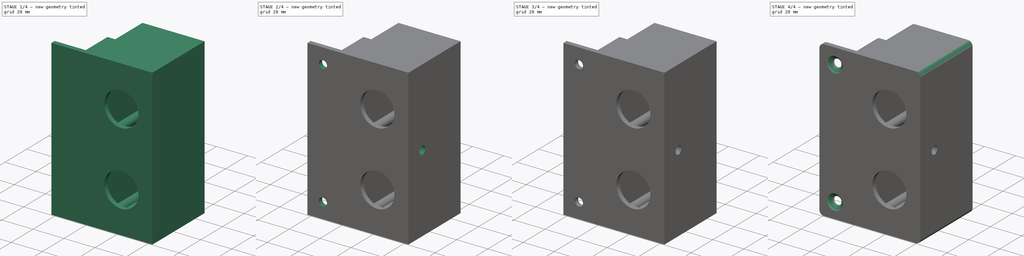
[diagram: build sequence overview — one tinted view per stage of 4, left to right]
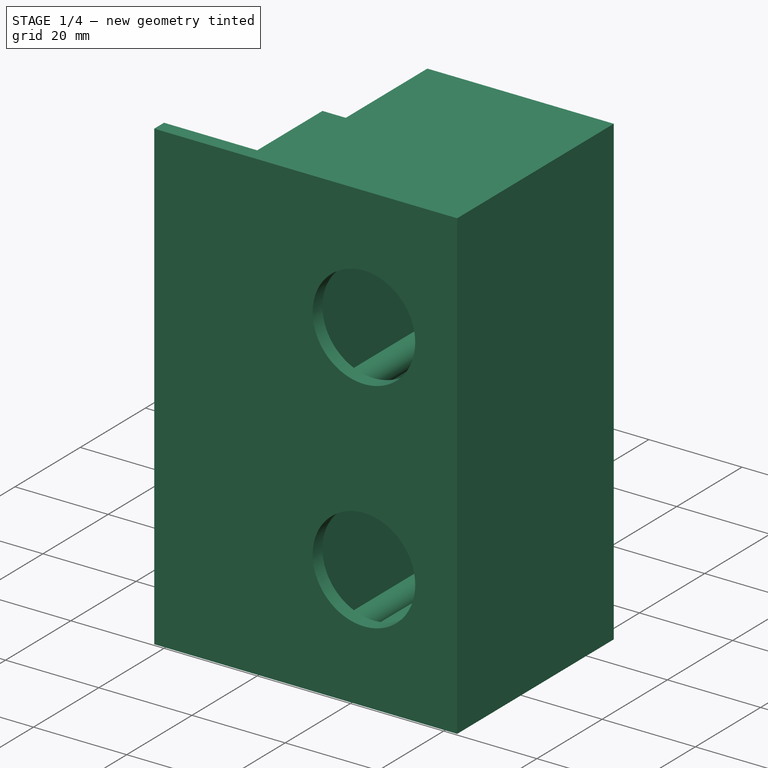
[diagram: stage 1 of 4 — iso view after this stage's code; geometry added in this stage tinted green]
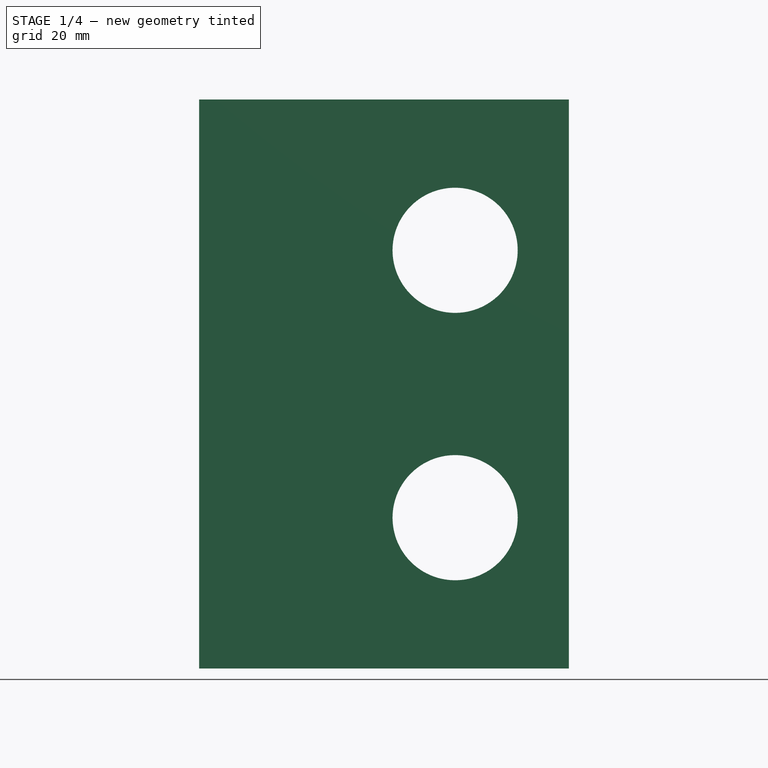
[diagram: stage 1 of 4 — front view after this stage's code; geometry added in this stage tinted green]
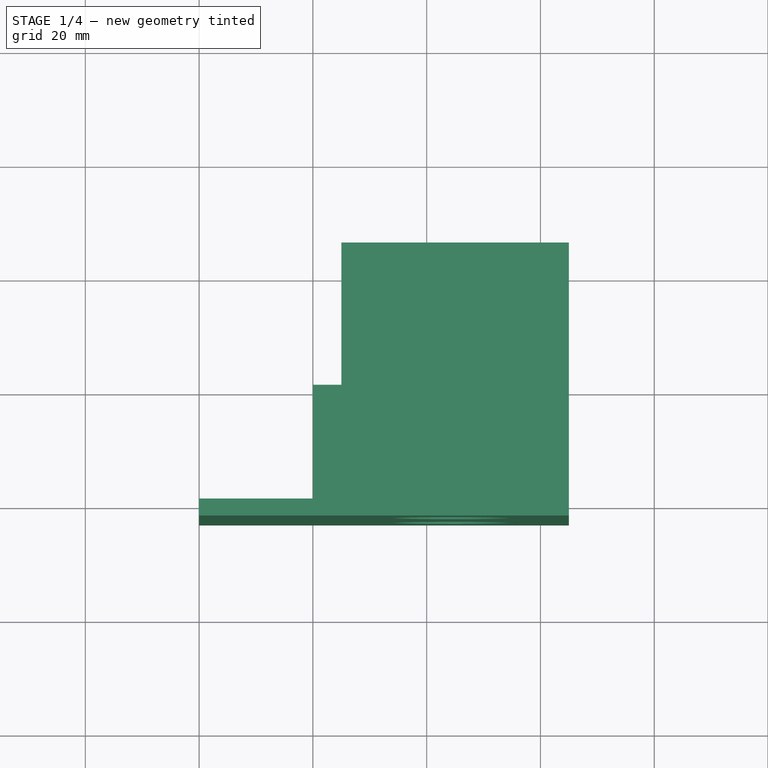
[diagram: stage 1 of 4 — top view after this stage's code; geometry added in this stage tinted green]
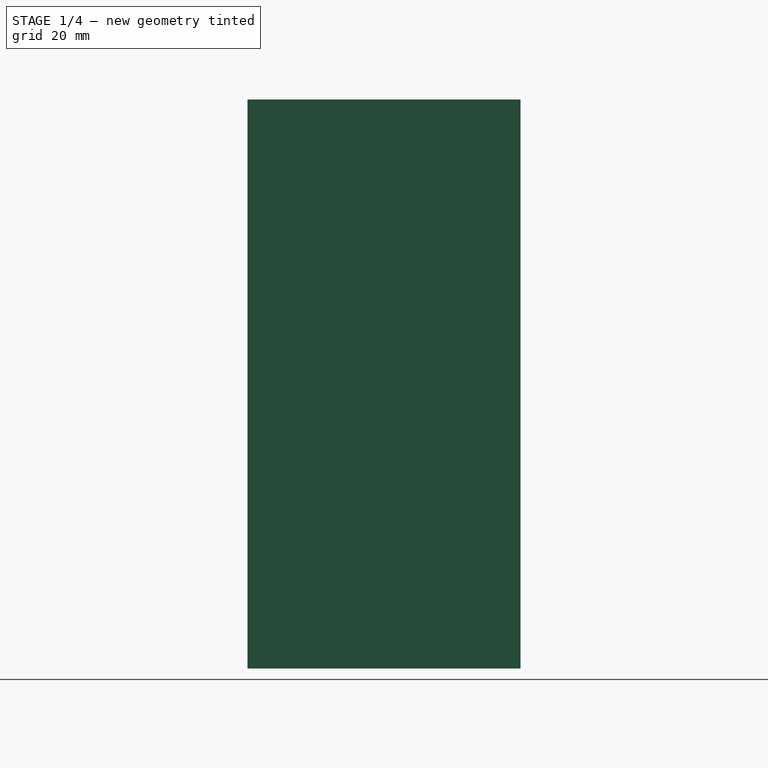
[diagram: stage 1 of 4 — right view after this stage's code; geometry added in this stage tinted green]
FCSTD DOCUMENT  (FreeCAD 0.19R24276 (Git))
Label: 2020_2x22mm_left
License: All rights reserved
LicenseURL: http://en.wikipedia.org/wiki/All_rights_reserved
objects: Sketcher::SketchObject×8, PartDesign::Pocket×7, PartDesign::Chamfer×2, PartDesign::Pad×1, PartDesign::Fillet×1, PartDesign::Body×1
note: 31 computed .brp shape members not serialized (recipe doc carries the construction recipe); baked Part::Feature solids carry a one-line shape summary decoded from their .brp

FEATURE [Sketcher::SketchObject] Sketch
  FullyConstrained = true
  MapMode = 5
  Support = -> [XY_Plane]
  sketch-geometry (13):
    g0: LineSegment StartX=-20 StartY=-3 StartZ=0 EndX=-20 EndY=0 EndZ=0
    g1: LineSegment StartX=-20 StartY=0 StartZ=0 EndX=0 EndY=0 EndZ=0
    g2: LineSegment StartX=0 StartY=0 StartZ=0 EndX=0 EndY=20 EndZ=0
    g3: LineSegment StartX=0 StartY=20 StartZ=0 EndX=5 EndY=20 EndZ=0
    g4: LineSegment StartX=5 StartY=20 StartZ=0 EndX=5 EndY=45 EndZ=0
    g5: LineSegment StartX=45 StartY=45 StartZ=0 EndX=45 EndY=-3 EndZ=0
    g6: LineSegment StartX=45 StartY=-3 StartZ=0 EndX=-20 EndY=-3 EndZ=0
    g7: LineSegment StartX=45 StartY=45 StartZ=0 EndX=41 EndY=45 EndZ=0
    g8: LineSegment StartX=41 StartY=45 StartZ=0 EndX=41 EndY=0 EndZ=0
    g9: LineSegment StartX=41 StartY=0 StartZ=0 EndX=9 EndY=0 EndZ=0
    g10: LineSegment StartX=9 StartY=0 StartZ=0 EndX=9 EndY=45 EndZ=0
    g11: LineSegment StartX=9 StartY=45 StartZ=0 EndX=5 EndY=45 EndZ=0
    g12: LineSegment StartX=5 StartY=45 StartZ=0 EndX=45 EndY=45 EndZ=0
  constraints (37):
    c: PointOnObject(g0,g-1)
    c: Vertical(g0)
    c: Coincident(g0,g1)
    c: Coincident(g1,g-1)
    c: Coincident(g1,g2)
    c: PointOnObject(g2,g-2)
    c: Coincident(g2,g3)
    c: Horizontal(g3)
    c: Coincident(g3,g4)
    c: Vertical(g4)
    c: Vertical(g5)
    c: Coincident(g5,g6)
    c: Coincident(g6,g0)
    c: Horizontal(g6)
    c: Equal(g1,g2)
    c: DistanceX(g1,g1) = 20
    c: DistanceX(g3,g3) = 5
    c: DistanceY(g0,g0) = 3
    c: Coincident(g5,g7)
    c: Horizontal(g7)
    c: Coincident(g7,g8)
    c: PointOnObject(g8,g-1)
    c: Vertical(g8)
    c: Coincident(g8,g9)
    c: PointOnObject(g9,g-1)
    c: Coincident(g9,g10)
    c: Vertical(g10)
    c: Coincident(g11,g10)
    c: Coincident(g11,g4)
    c: Horizontal(g11)
    c: Equal(g10,g8)
    c: Equal(g7,g11)
    c: DistanceX(g9,g9) = 32
    c: DistanceX(g11,g11) = 4
    c: DistanceY(g8,g8) = 45
    c: Coincident(g12,g4)
    c: Coincident(g12,g5)
FEATURE [PartDesign::Pad] Pad
  Direction = (1,1,1)
  Length = 100
  Length2 = 100
  Midplane = true
  Profile = -> Sketch
  Type = 0
FEATURE [Sketcher::SketchObject] Sketch001
  FullyConstrained = true
  MapMode = 5
  Placement = pos=(0,45,0) rot=(0,0.707107,0.707107;3.14159rad)
  Support = -> [Pad]
  sketch-geometry (25):
    g0: ArcOfCircle CenterX=-42 CenterY=0 CenterZ=0 NormalX=0 NormalY=0 NormalZ=1 AngleXU=0 Radius=3 StartAngle=4.71239 EndAngle=7.85398
    g1: ArcOfCircle CenterX=-8 CenterY=0 CenterZ=0 NormalX=0 NormalY=0 NormalZ=1 AngleXU=0 Radius=3 StartAngle=1.5708 EndAngle=4.71239
    g2: LineSegment StartX=-42 StartY=3 StartZ=0 EndX=-42 EndY=44 EndZ=0
    g3: LineSegment StartX=-39 StartY=47 StartZ=0 EndX=-11 EndY=47 EndZ=0
    g4: LineSegment StartX=-8 StartY=44 StartZ=0 EndX=-8 EndY=3 EndZ=0
    g5: LineSegment StartX=-8 StartY=3 StartZ=0 EndX=-8 EndY=-3 EndZ=0
    g6: LineSegment StartX=-8 StartY=-3 StartZ=0 EndX=-8 EndY=-44 EndZ=0
    g7: LineSegment StartX=-11 StartY=-47 StartZ=0 EndX=-39 EndY=-47 EndZ=0
    g8: LineSegment StartX=-42 StartY=-44 StartZ=0 EndX=-42 EndY=-3 EndZ=0
    g9: LineSegment StartX=-42 StartY=-3 StartZ=0 EndX=-42 EndY=3 EndZ=0
    g10: LineSegment StartX=-42 StartY=44 StartZ=0 EndX=-42 EndY=47 EndZ=0
    g11: LineSegment StartX=-39 StartY=47 StartZ=0 EndX=-42 EndY=47 EndZ=0
    g12: LineSegment StartX=-11 StartY=47 StartZ=0 EndX=-8 EndY=47 EndZ=0
    g13: LineSegment StartX=-8 StartY=47 StartZ=0 EndX=-8 EndY=44 EndZ=0
    g14: LineSegment StartX=-11 StartY=-47 StartZ=0 EndX=-8 EndY=-47 EndZ=0
    g15: LineSegment StartX=-8 StartY=-44 StartZ=0 EndX=-8 EndY=-47 EndZ=0
    g16: LineSegment StartX=-42 StartY=-44 StartZ=0 EndX=-42 EndY=-47 EndZ=0
    g17: LineSegment StartX=-42 StartY=-47 StartZ=0 EndX=-39 EndY=-47 EndZ=0
    g18: ArcOfCircle CenterX=-42 CenterY=-47 CenterZ=0 NormalX=0 NormalY=0 NormalZ=1 AngleXU=0 Radius=3 StartAngle=0 EndAngle=1.5708
    g19: ArcOfCircle CenterX=-8 CenterY=-47 CenterZ=0 NormalX=0 NormalY=0 NormalZ=1 AngleXU=0 Radius=3 StartAngle=1.5708 EndAngle=3.14159
    g20: ArcOfCircle CenterX=-42 CenterY=47 CenterZ=0 NormalX=0 NormalY=0 NormalZ=1 AngleXU=0 Radius=3 StartAngle=4.71239 EndAngle=6.28319
    g21: ArcOfCircle CenterX=-8 CenterY=47 CenterZ=0 NormalX=0 NormalY=0 NormalZ=1 AngleXU=0 Radius=3 StartAngle=3.14159 EndAngle=4.71239
    g22: LineSegment StartX=-42 StartY=47 StartZ=0 EndX=-25 EndY=0 EndZ=0
    g23: LineSegment StartX=-25 StartY=0 StartZ=0 EndX=-8 EndY=47 EndZ=0
    g24: LineSegment StartX=-25 StartY=0 StartZ=0 EndX=-42 EndY=-47 EndZ=0
  constraints (69):
    c: PointOnObject(g0,g-1)
    c: PointOnObject(g1,g-1)
    c: Coincident(g2,g0)
    c: Vertical(g2)
    c: Horizontal(g3)
    c: Vertical(g4)
    c: Coincident(g5,g4)
    c: Vertical(g5)
    c: Coincident(g6,g5)
    c: Vertical(g6)
    c: Horizontal(g7)
    c: Coincident(g8,g0)
    c: Coincident(g9,g0)
    c: Coincident(g9,g0)
    c: Vertical(g9)
    c: PointOnObject(g0,g9)
    c: Coincident(g1,g4)
    c: Coincident(g1,g5)
    c: PointOnObject(g1,g5)
    c: Coincident(g10,g2)
    c: Coincident(g11,g3)
    c: Coincident(g11,g10)
    c: Horizontal(g11)
    c: Vertical(g10)
    c: Coincident(g12,g3)
    c: Coincident(g13,g12)
    c: Coincident(g13,g4)
    c: Vertical(g13)
    c: Horizontal(g12)
    c: Coincident(g14,g7)
    c: Horizontal(g14)
    c: Coincident(g15,g6)
    c: Coincident(g15,g14)
    c: Vertical(g15)
    c: Coincident(g16,g8)
    c: Coincident(g17,g16)
    c: Coincident(g17,g7)
    c: Horizontal(g17)
    c: Vertical(g16)
    c: Vertical(g8)
    c: Coincident(g18,g16)
    c: Coincident(g18,g8)
    c: Coincident(g18,g7)
    c: Coincident(g19,g14)
    c: Coincident(g19,g7)
    c: Coincident(g19,g6)
    c: Coincident(g20,g10)
    c: Coincident(g20,g2)
    c: Coincident(g20,g3)
    c: Coincident(g21,g12)
    c: Coincident(g21,g4)
    c: Coincident(g21,g3)
    c: Equal(g18,g19)
    c: Equal(g19,g1)
    c: Equal(g1,g0)
    c: Equal(g0,g21)
    c: Equal(g21,g20)
    c: DistanceX(g20,g21) = 34
    c: DistanceY(g18,g20) = 94
    c: Coincident(g22,g20)
    c: PointOnObject(g22,g-1)
    c: Coincident(g22,g23)
    c: Coincident(g23,g21)
    c: Coincident(g22,g24)
    c: Coincident(g24,g18)
    c: Equal(g24,g22)
    c: Equal(g22,g23)
    c: DistanceX(g22,g-1) = 25
    c: Radius(g18) = 3
FEATURE [PartDesign::Pocket] Pocket
  BaseFeature = -> Pad
  Length = 45
  Length2 = 100
  Profile = -> Sketch001
  Type = 0
FEATURE [Sketcher::SketchObject] Sketch002
  FullyConstrained = true
  MapMode = 5
  Placement = pos=(0,1.4e-14,0) rot=(0,0.707107,0.707107;3.14159rad)
  sketch-geometry (4):
    g0: LineSegment StartX=-25 StartY=23.5 StartZ=0 EndX=-25 EndY=0 EndZ=0
    g1: LineSegment StartX=-25 StartY=0 StartZ=0 EndX=-25 EndY=-23.5 EndZ=0
    g2: Circle CenterX=-25 CenterY=23.5 CenterZ=0 NormalX=0 NormalY=0 NormalZ=1 AngleXU=0 Radius=11
    g3: Circle CenterX=-25 CenterY=-23.5 CenterZ=0 NormalX=0 NormalY=0 NormalZ=1 AngleXU=0 Radius=11
  constraints (11):
    c: PointOnObject(g0,g-1)
    c: Vertical(g0)
    c: Coincident(g1,g0)
    c: Vertical(g1)
    c: Equal(g0,g1)
    c: Coincident(g2,g0)
    c: Coincident(g3,g1)
    c: Diameter(g3) = 22
    c: Equal(g3,g2)
    c: DistanceX(g0,g-1) = 25
    c: DistanceY(g0,g0) = 23.5
FEATURE [PartDesign::Pocket] Pocket001
  BaseFeature = -> Pocket
  Length = 5
  Length2 = 100
  Profile = -> Sketch002
  Type = 0
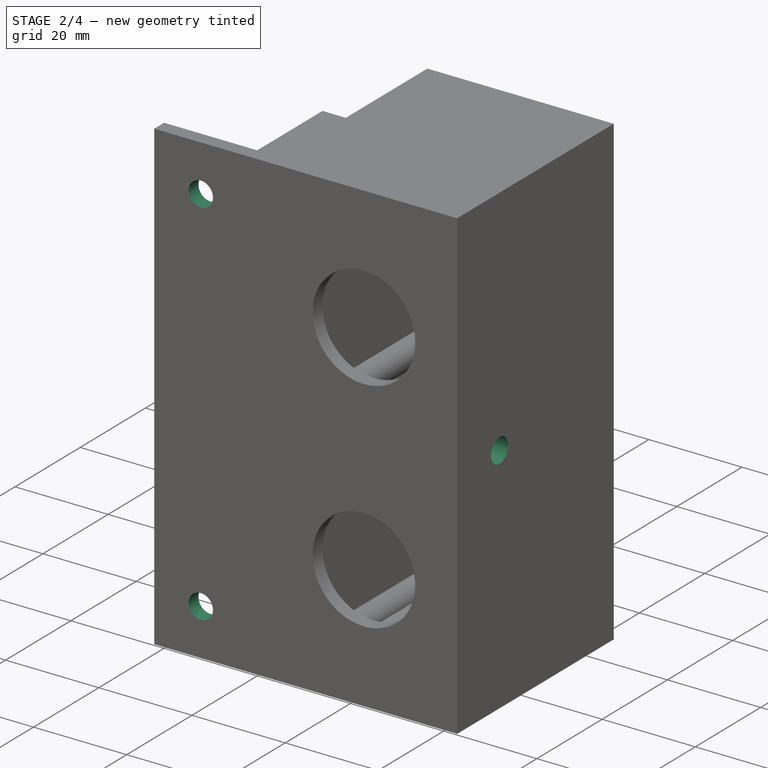
[diagram: stage 2 of 4 — iso view after this stage's code; geometry added in this stage tinted green]
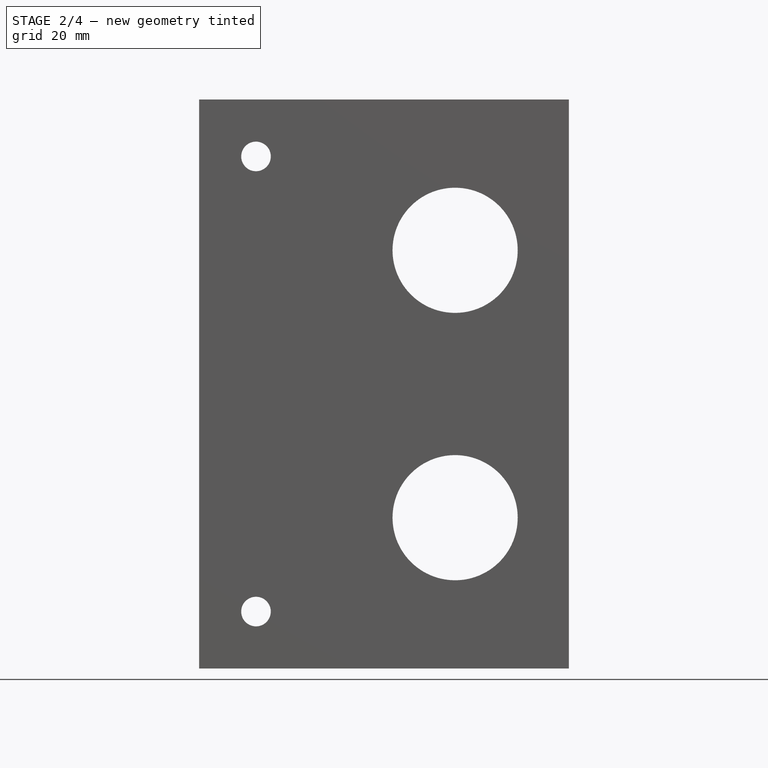
[diagram: stage 2 of 4 — front view after this stage's code; geometry added in this stage tinted green]
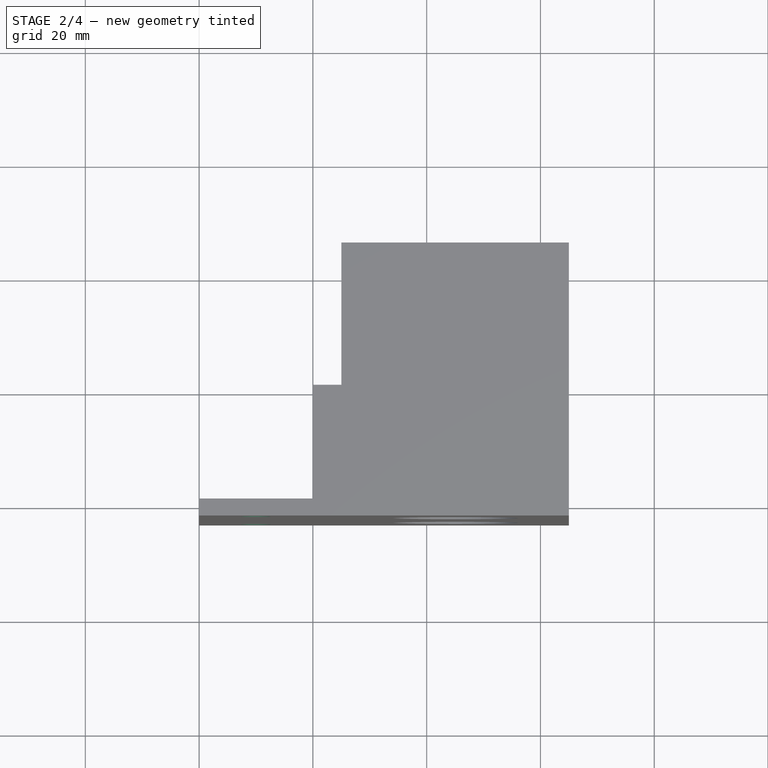
[diagram: stage 2 of 4 — top view after this stage's code; geometry added in this stage tinted green]
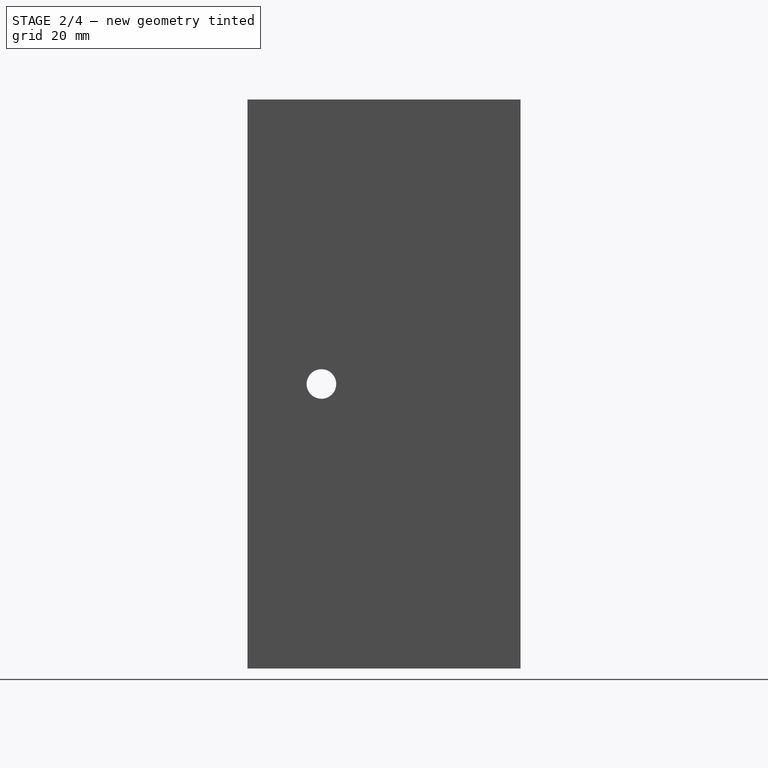
[diagram: stage 2 of 4 — right view after this stage's code; geometry added in this stage tinted green]
FEATURE [Sketcher::SketchObject] Sketch003
  ExternalGeometry = -> [Pocket001]
  FullyConstrained = true
  MapMode = 5
  Placement = pos=(0,45,0) rot=(0,0.707107,0.707107;3.14159rad)
  Support = -> [Pocket001]
  sketch-geometry (6):
    g0: Circle CenterX=-42 CenterY=47 CenterZ=0 NormalX=0 NormalY=0 NormalZ=1 AngleXU=0 Radius=1.5
    g1: Circle CenterX=-8 CenterY=47 CenterZ=0 NormalX=0 NormalY=0 NormalZ=1 AngleXU=0 Radius=1.5
    g2: Circle CenterX=-42 CenterY=0 CenterZ=0 NormalX=0 NormalY=0 NormalZ=1 AngleXU=0 Radius=1.5
    g3: Circle CenterX=-8 CenterY=0 CenterZ=0 NormalX=0 NormalY=0 NormalZ=1 AngleXU=0 Radius=1.5
    g4: Circle CenterX=-42 CenterY=-47 CenterZ=0 NormalX=0 NormalY=0 NormalZ=1 AngleXU=0 Radius=1.5
    g5: Circle CenterX=-8 CenterY=-47 CenterZ=0 NormalX=0 NormalY=0 NormalZ=1 AngleXU=0 Radius=1.5
  constraints (12):
    c: Coincident(g0,g-3)
    c: Coincident(g1,g-6)
    c: Coincident(g2,g-4)
    c: Coincident(g3,g-5)
    c: Coincident(g4,g-8)
    c: Coincident(g5,g-7)
    c: Diameter(g5) = 3
    c: Equal(g5,g4)
    c: Equal(g5,g2)
    c: Equal(g5,g3)
    c: Equal(g5,g1)
    c: Equal(g5,g0)
FEATURE [PartDesign::Pocket] Pocket002
  BaseFeature = -> Pocket001
  Length = 15
  Length2 = 100
  Profile = -> Sketch003
  Type = 0
FEATURE [Sketcher::SketchObject] Sketch004
  ExternalGeometry = -> [Pocket002]
  FullyConstrained = true
  MapMode = 5
  Placement = pos=(0,0,0) rot=(0.57735,-0.57735,-0.57735;2.0944rad)
  Support = -> [Pocket002]
  sketch-geometry (4):
    g0: LineSegment StartX=-20 StartY=50 StartZ=0 EndX=-10 EndY=1.42e-14 EndZ=0
    g1: LineSegment StartX=-10 StartY=1.39e-14 StartZ=0 EndX=-20 EndY=-50 EndZ=0
    g2: LineSegment StartX=-10 StartY=1.39e-14 StartZ=0 EndX=3.6e-15 EndY=-50 EndZ=0
    g3: Circle CenterX=-10 CenterY=1.39e-14 CenterZ=0 NormalX=0 NormalY=0 NormalZ=1 AngleXU=0 Radius=2.6
  constraints (9):
    c: Coincident(g-3,g0)
    c: Coincident(g1,g-3)
    c: Coincident(g2,g-4)
    c: Equal(g2,g1)
    c: Diameter(g3) = 5.2
    c: Coincident(g0,g3)
    c: Coincident(g1,g3)
    c: Equal(g0,g1)
    c: Coincident(g2,g3)
FEATURE [PartDesign::Pocket] Pocket003
  BaseFeature = -> Pocket002
  Length = 25
  Length2 = 100
  Profile = -> Sketch004
  Type = 1
FEATURE [Sketcher::SketchObject] Sketch005
  ExternalGeometry = -> [Pocket003]
  FullyConstrained = true
  MapMode = 5
  Placement = pos=(0,-3,0) rot=(1,0,0;1.5708rad)
  Support = -> [Pocket003]
  sketch-geometry (8):
    g0: LineSegment StartX=0 StartY=50 StartZ=0 EndX=-10 EndY=40 EndZ=0
    g1: LineSegment StartX=-10 StartY=40 StartZ=0 EndX=-20 EndY=50 EndZ=0
    g2: LineSegment StartX=-10 StartY=40 StartZ=0 EndX=-10 EndY=0 EndZ=0
    g3: LineSegment StartX=0 StartY=-50 StartZ=0 EndX=-10 EndY=-40 EndZ=0
    g4: LineSegment StartX=-20 StartY=-50 StartZ=0 EndX=-10 EndY=-40 EndZ=0
    g5: Circle CenterX=-10 CenterY=40 CenterZ=0 NormalX=0 NormalY=0 NormalZ=1 AngleXU=0 Radius=2.6
    g6: Circle CenterX=-10 CenterY=0 CenterZ=0 NormalX=0 NormalY=0 NormalZ=1 AngleXU=0 Radius=2.6
    g7: Circle CenterX=-10 CenterY=-40 CenterZ=0 NormalX=0 NormalY=0 NormalZ=1 AngleXU=0 Radius=2.6
  constraints (19):
    c: Coincident(g0,g-3)
    c: Coincident(g1,g0)
    c: Coincident(g1,g-3)
    c: Coincident(g2,g0)
    c: PointOnObject(g2,g-1)
    c: Vertical(g2)
    c: Coincident(g3,g-4)
    c: Coincident(g4,g-4)
    c: Coincident(g4,g3)
    c: Equal(g4,g3)
    c: Equal(g3,g0)
    c: Equal(g0,g1)
    c: Coincident(g5,g0)
    c: Coincident(g6,g2)
    c: Coincident(g7,g3)
    c: Diameter(g7) = 5.2
    c: Equal(g7,g6)
    c: Equal(g7,g5)
    c: Perpendicular(g1,g0)
FEATURE [PartDesign::Pocket] Pocket004
  BaseFeature = -> Pocket003
  Length = 5
  Length2 = 100
  Profile = -> Sketch005
  Type = 1
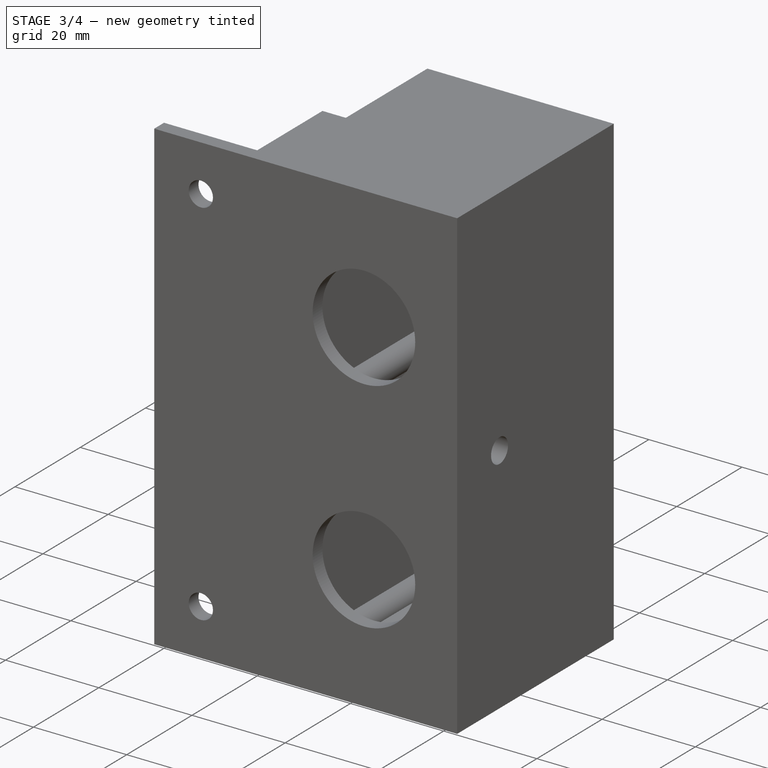
[diagram: stage 3 of 4 — iso view after this stage's code; geometry added in this stage tinted green]
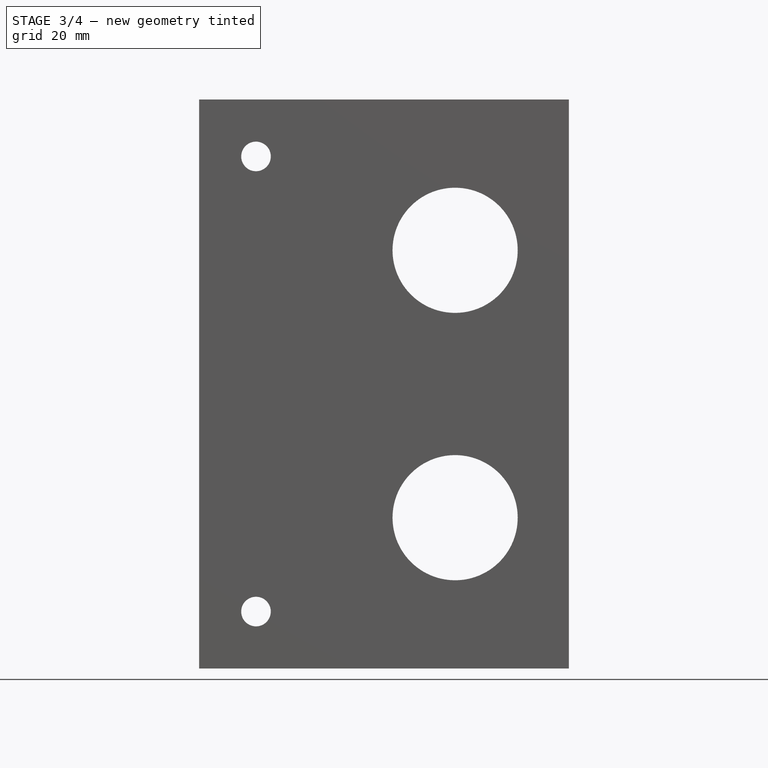
[diagram: stage 3 of 4 — front view after this stage's code; geometry added in this stage tinted green]
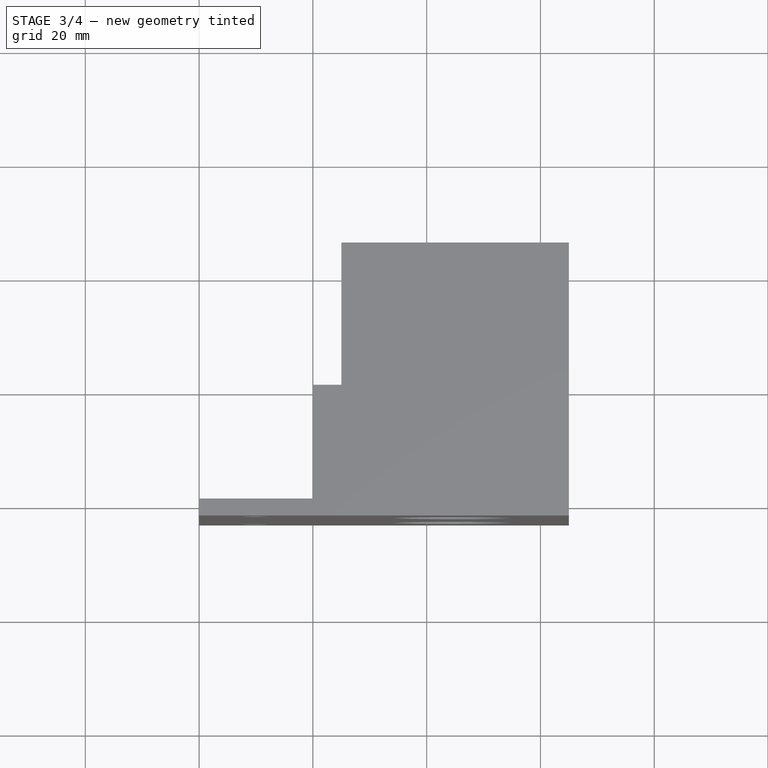
[diagram: stage 3 of 4 — top view after this stage's code; geometry added in this stage tinted green]
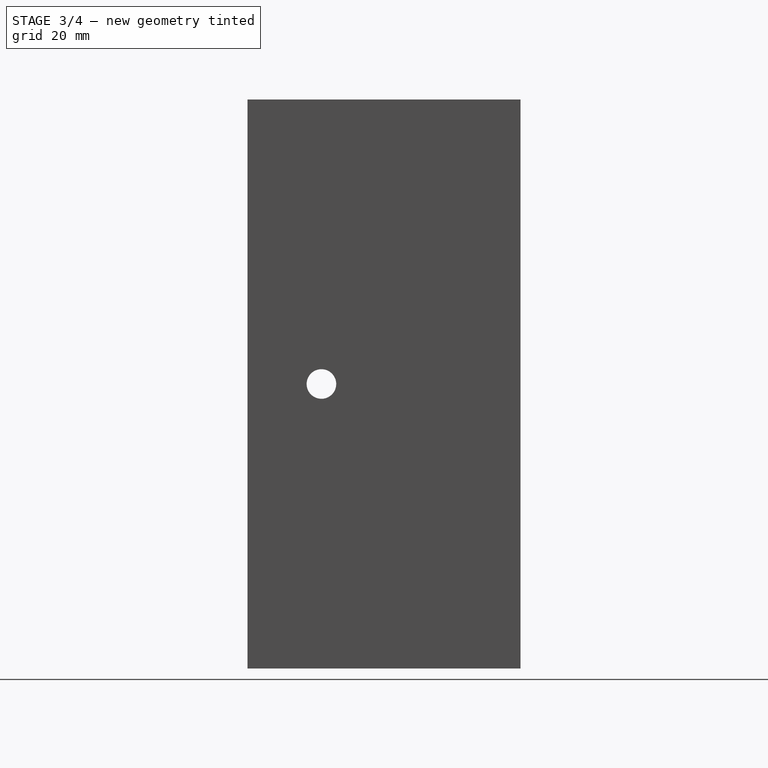
[diagram: stage 3 of 4 — right view after this stage's code; geometry added in this stage tinted green]
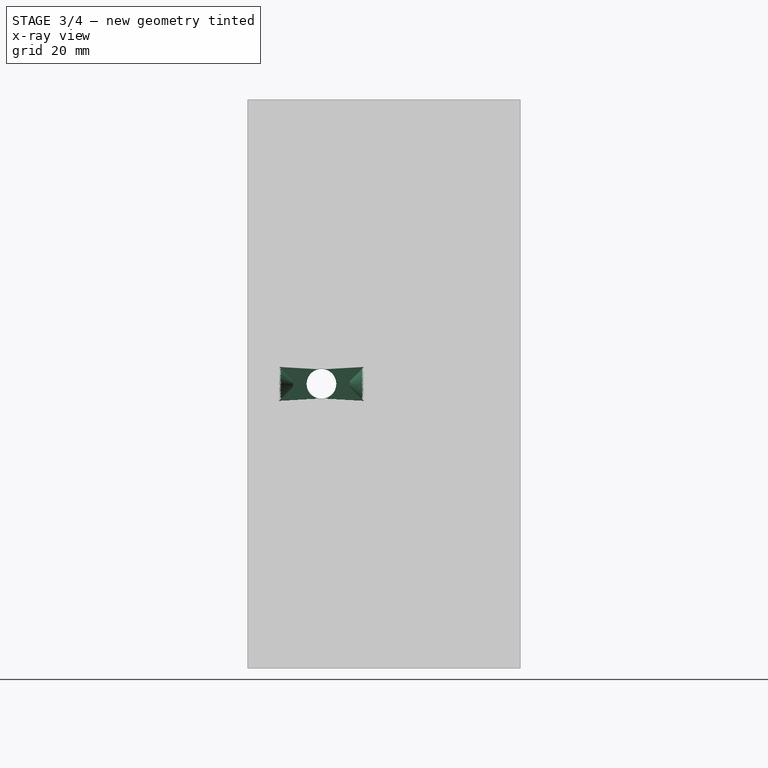
[diagram: stage 3 of 4 — x-ray composite at the right view; earlier geometry ghosted, this stage's added geometry solid]
FEATURE [Sketcher::SketchObject] Sketch006
  FullyConstrained = true
  MapMode = 5
  Placement = pos=(8,0,0) rot=(0.57735,0.57735,0.57735;2.0944rad)
  Support = -> [Pocket003]
  sketch-geometry (5):
    g0: LineSegment StartX=15 StartY=5 StartZ=0 EndX=5 EndY=5 EndZ=0
    g1: LineSegment StartX=5 StartY=5 StartZ=0 EndX=5 EndY=-5 EndZ=0
    g2: LineSegment StartX=5 StartY=-5 StartZ=0 EndX=15 EndY=-5 EndZ=0
    g3: LineSegment StartX=15 StartY=-5 StartZ=0 EndX=15 EndY=5 EndZ=0
    g4: Circle CenterX=10 CenterY=0 CenterZ=0 NormalX=0 NormalY=0 NormalZ=1 AngleXU=0 Radius=7.07107
  constraints (15):
    c: Coincident(g0,g1)
    c: Coincident(g1,g2)
    c: Coincident(g2,g3)
    c: Coincident(g3,g0)
    c: Equal(g0,g1)
    c: Equal(g0,g2)
    c: Equal(g0,g3)
    c: PointOnObject(g0,g4)
    c: PointOnObject(g1,g4)
    c: PointOnObject(g2,g4)
    c: PointOnObject(g3,g4)
    c: PointOnObject(g4,g-1)
    c: Horizontal(g0)
    c: DistanceX(g-1,g4) = 10
    c: DistanceX(g0,g0) = 10
FEATURE [PartDesign::Pocket] Pocket005
  BaseFeature = -> Pocket004
  Length = 5
  Length2 = 100
  Profile = -> Sketch006
  Refine = true
  Reversed = true
  Type = 0
FEATURE [PartDesign::Chamfer] Chamfer
  Angle = 45
  Base = -> Pocket005 [Edge99,Edge90]
  BaseFeature = -> Pocket005
  ChamferType = 0
  FlipDirection = false
  Size = 2.5
  Size2 = 1
  SupportTransform = false
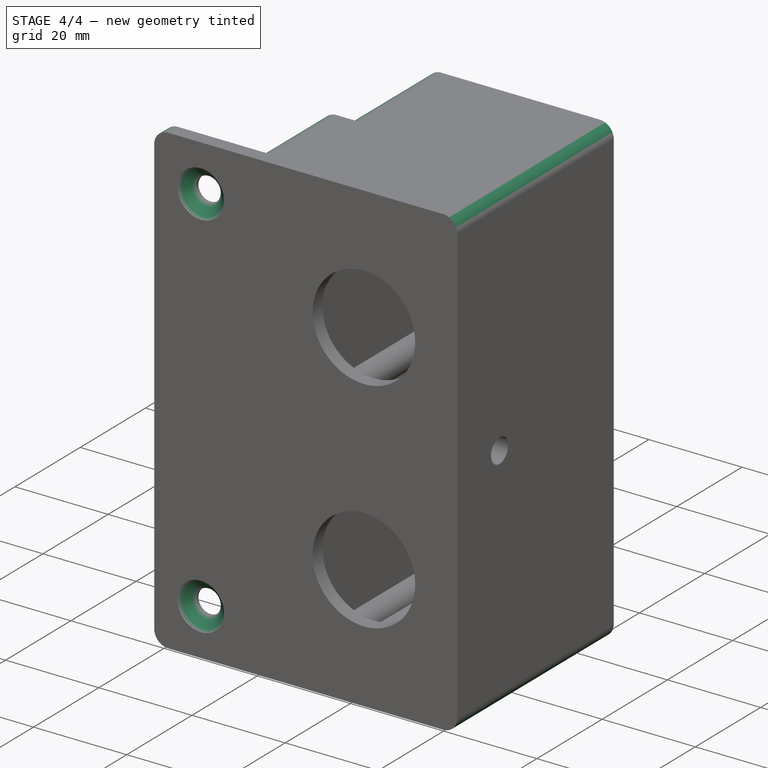
[diagram: stage 4 of 4 — iso view after this stage's code; geometry added in this stage tinted green]
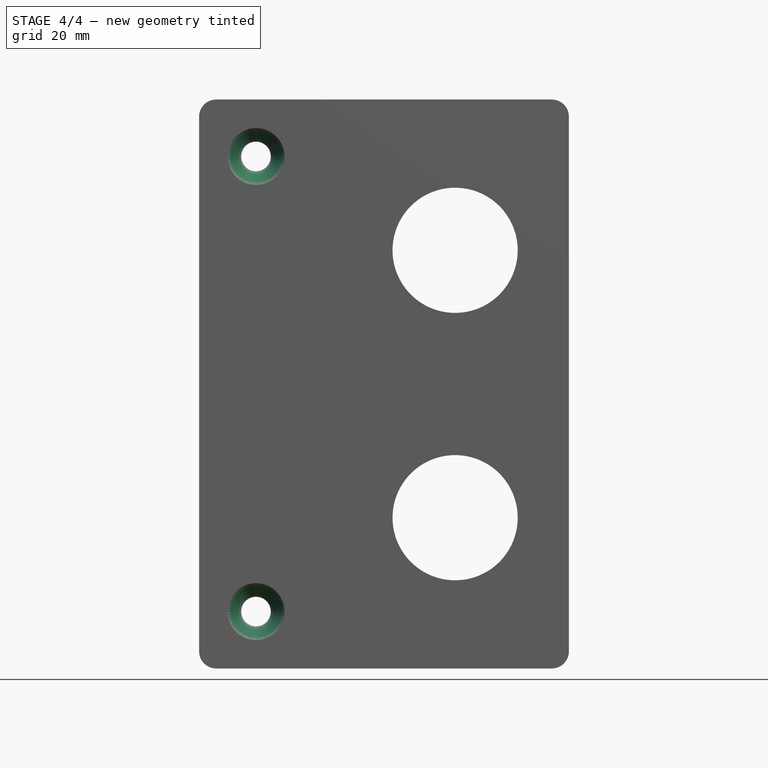
[diagram: stage 4 of 4 — front view after this stage's code; geometry added in this stage tinted green]
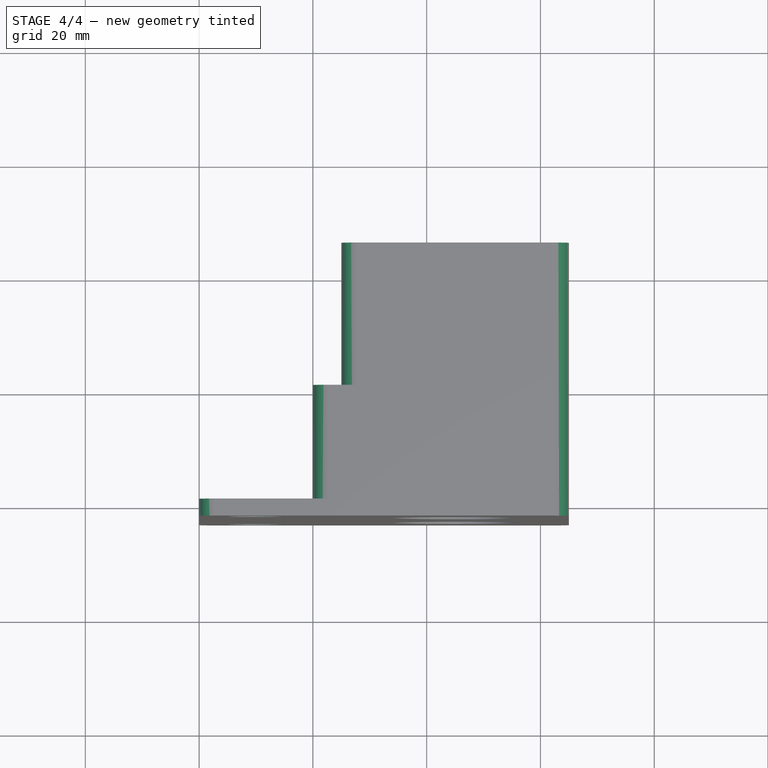
[diagram: stage 4 of 4 — top view after this stage's code; geometry added in this stage tinted green]
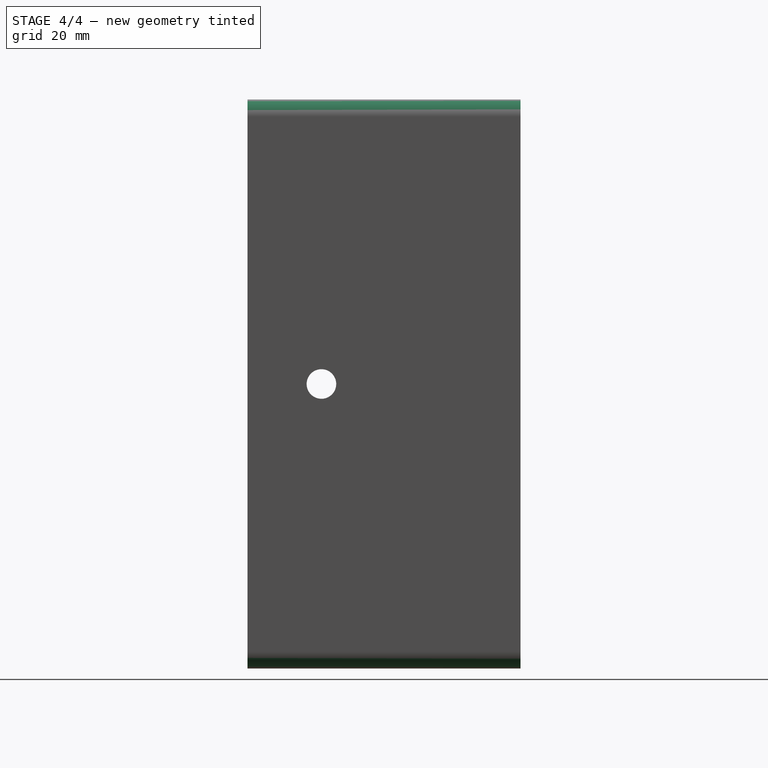
[diagram: stage 4 of 4 — right view after this stage's code; geometry added in this stage tinted green]
FEATURE [PartDesign::Chamfer] Chamfer001
  Angle = 45
  Base = -> Chamfer [Edge19,Edge105,Edge106]
  BaseFeature = -> Chamfer
  ChamferType = 0
  FlipDirection = false
  Size = 2.4
  Size2 = 1
  SupportTransform = false
FEATURE [PartDesign::Fillet] Fillet
  Base = -> Chamfer001 [Edge72,Edge66,Edge68,Edge65,Edge64,Edge74,Edge70,Edge76]
  BaseFeature = -> Chamfer001
  Radius = 3
  SupportTransform = false
FEATURE [Sketcher::SketchObject] Sketch007
  FullyConstrained = true
  MapMode = 5
  Support = -> [XY_Plane]
  sketch-geometry (1):
    g0: Circle CenterX=25 CenterY=30 CenterZ=0 NormalX=0 NormalY=0 NormalZ=1 AngleXU=0 Radius=8
  constraints (3):
    c: Diameter(g0) = 16
    c: DistanceX(g-1,g0) = 25
    c: DistanceY(g-1,g0) = 30
FEATURE [PartDesign::Pocket] Pocket006
  BaseFeature = -> Fillet
  Length = 5
  Length2 = 100
  Profile = -> Sketch007
  Type = 1
FEATURE [PartDesign::Body] Body
  Group = -> [Sketch,Pad,Sketch001,Pocket,Sketch002,Pocket001,Sketch003,Pocket002,Sketch004,Pocket003,Sketch005,Pocket004,Sketch006,Pocket005,Chamfer,Chamfer001,Fillet,Sketch007,Pocket006]
  Origin = -> Origin
  Tip = -> Pocket006
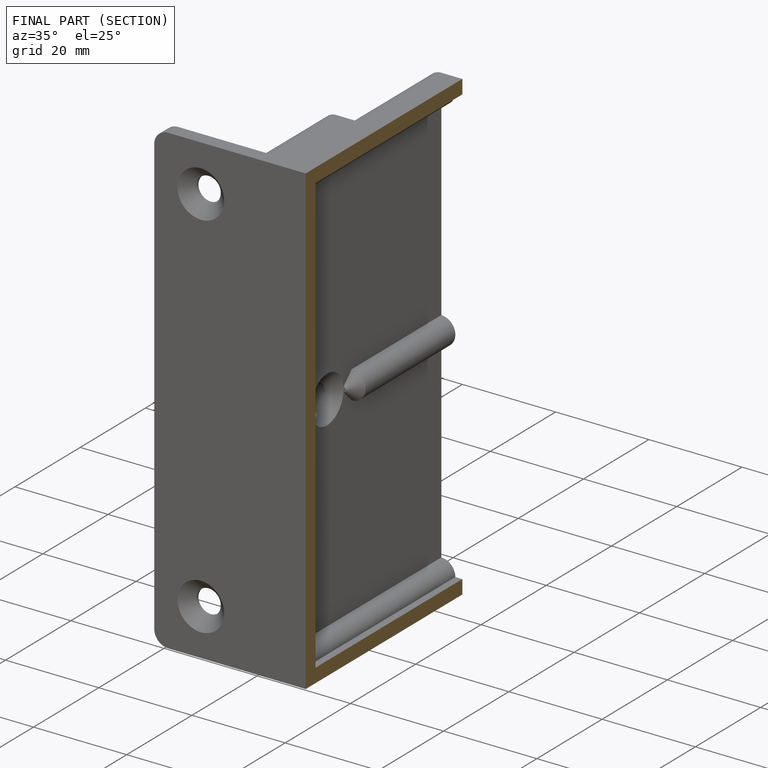
[diagram: finished part — half-section view (interior)]
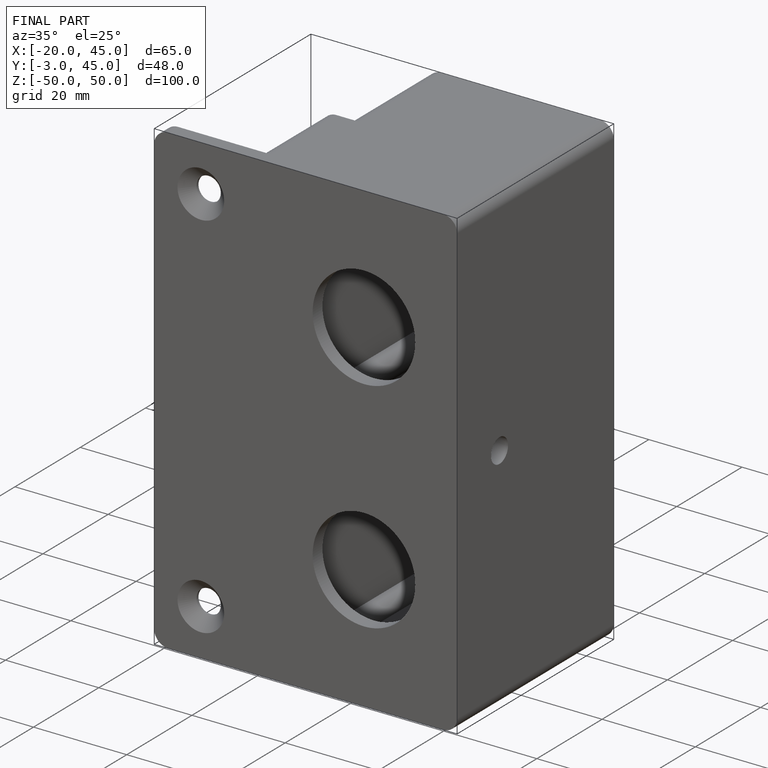
[diagram: finished part — iso view with bounding-box wireframe]
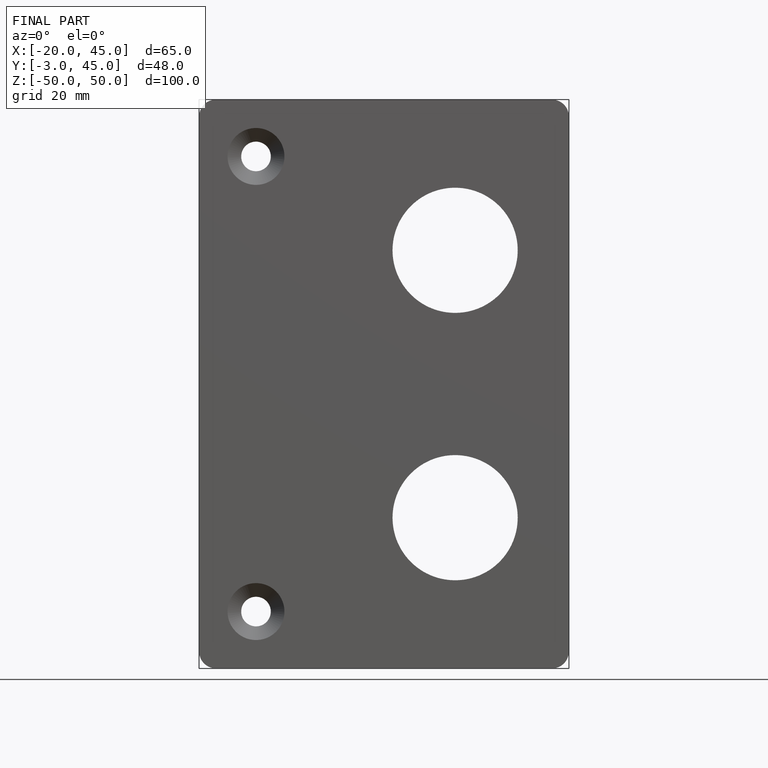
[diagram: finished part — front view with bounding-box wireframe]
